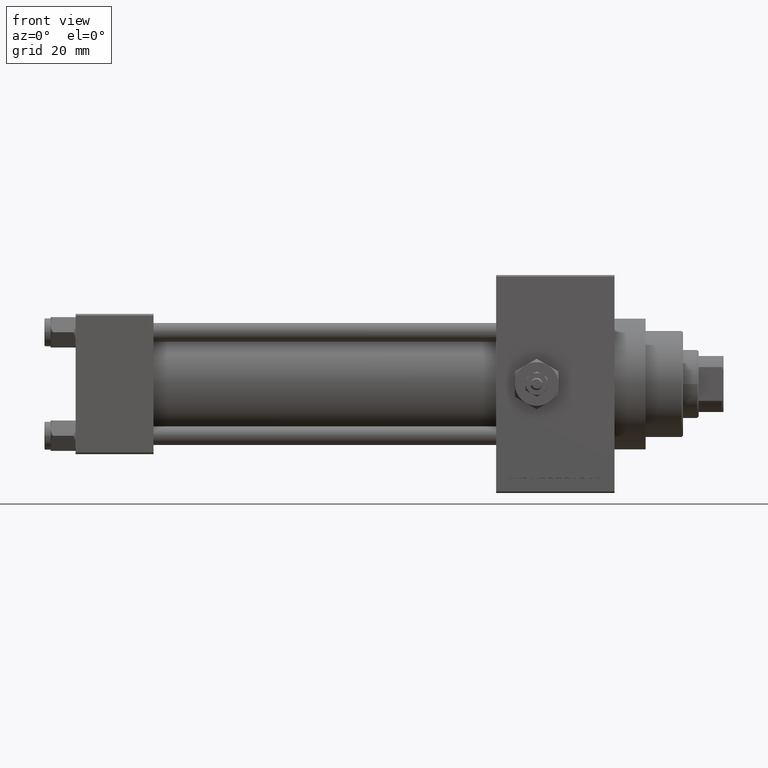
[diagram: clean part render]
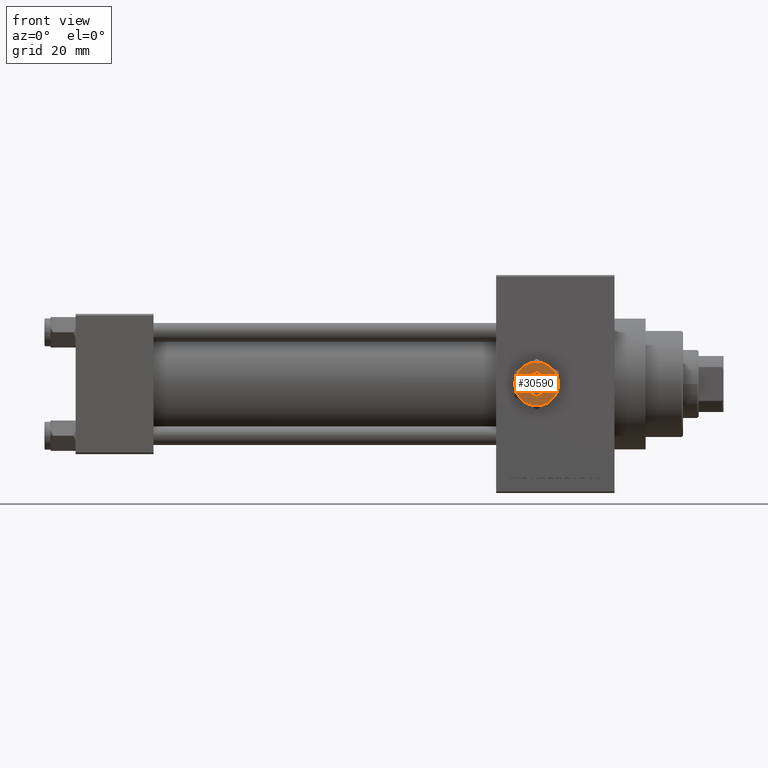
[diagram: same view with one face highlighted and labeled with its STEP entity id]
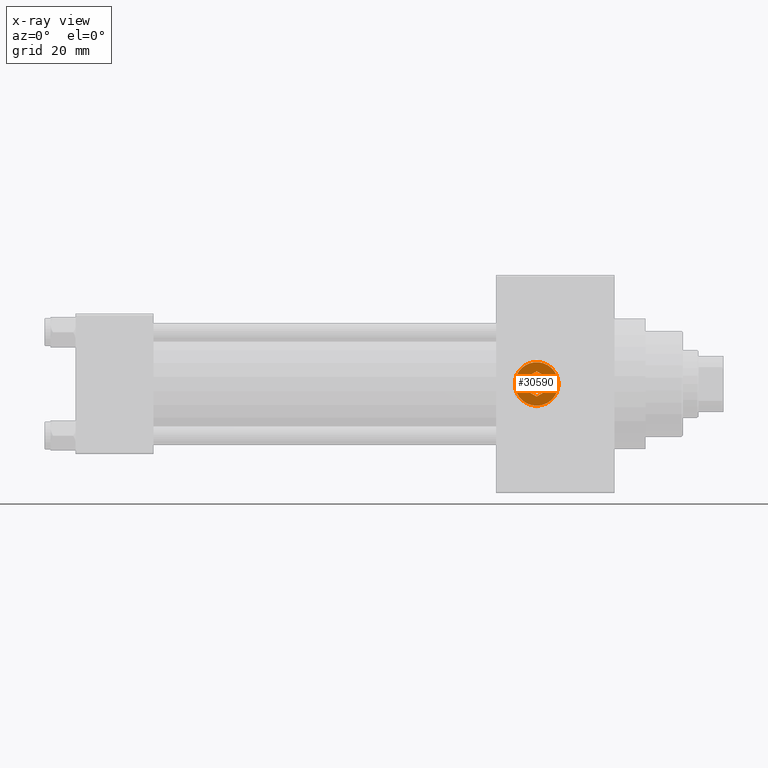
[diagram: x-ray of the same camera — body ghosted, the highlighted face saturated]
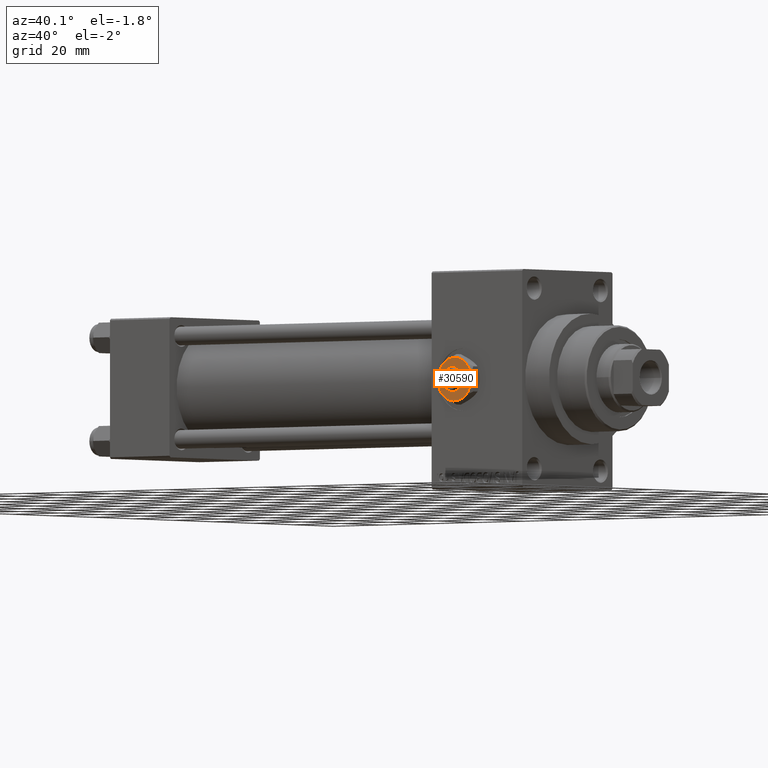
[diagram: same view with one face highlighted and labeled with its STEP entity id]
A machine part, front view. The second image highlights one B-rep face of the part: STEP entity #30590.
The next image is the same camera in x-ray: the body ghosted, the highlighted face saturated — about 0% of this face is hidden behind the body in this view.
A second angle (auxiliary view) of the same face is appended — the face is thin or edge-on in the first view.
In plain terms, the highlighted planar face has unit normal (0, -1, -0).
Its self-contained STEP definition (entity closure, byte-faithful):
#120 = CARTESIAN_POINT ( 'NONE',  ( 3.500000000000000000, -2.020725942163690281, 4.299999999999999822 ) ) ;
#245 = DIRECTION ( 'NONE',  ( -3.219245568722483357E-16, 1.000000000000000000, 0.000000000000000000 ) ) ;
#783 = DIRECTION ( 'NONE',  ( 1.000000000000000000, 0.000000000000000000, 0.000000000000000000 ) ) ;
#1847 = ORIENTED_EDGE ( 'NONE', *, *, #43045, .T. ) ;
#2067 = VERTEX_POINT ( 'NONE', #4788 ) ;
#2761 = ORIENTED_EDGE ( 'NONE', *, *, #18496, .T. ) ;
#2903 = AXIS2_PLACEMENT_3D ( 'NONE', #9194, #16620, #8950 ) ;
#3246 = ORIENTED_EDGE ( 'NONE', *, *, #7672, .T. ) ;
#4788 = CARTESIAN_POINT ( 'NONE',  ( -3.499999999999998668, -2.020725942163689837, 4.299999999999999822 ) ) ;
#6610 = VERTEX_POINT ( 'NONE', #39509 ) ;
#7207 = CARTESIAN_POINT ( 'NONE',  ( 0.000000000000000000, 0.000000000000000000, 4.299999999999999822 ) ) ;
#7672 = EDGE_CURVE ( 'NONE', #44621, #30722, #19479, .T. ) ;
#8276 = DIRECTION ( 'NONE',  ( 0.8660254037844388186, 0.4999999999999996669, 0.000000000000000000 ) ) ;
#8416 = CARTESIAN_POINT ( 'NONE',  ( -2.443687887572056883E-16, -4.041451884327378785, 4.299999999999999822 ) ) ;
#8565 = CARTESIAN_POINT ( 'NONE',  ( -3.499999999999998668, -2.020725942163689837, 4.299999999999999822 ) ) ;
#8755 = VECTOR ( 'NONE', #34975, 1000.000000000000227 ) ;
#8890 = DIRECTION ( 'NONE',  ( 0.000000000000000000, 0.000000000000000000, 1.000000000000000000 ) ) ;
#8950 = DIRECTION ( 'NONE',  ( 1.000000000000000000, 0.000000000000000000, 0.000000000000000000 ) ) ;
#9148 = VECTOR ( 'NONE', #245, 1000.000000000000000 ) ;
#9194 = CARTESIAN_POINT ( 'NONE',  ( 0.000000000000000000, 0.000000000000000000, 4.299999999999999822 ) ) ;
#9510 = EDGE_LOOP ( 'NONE', ( #22578, #2761, #44347, #25383, #3246, #1847 ) ) ;
#11078 = LINE ( 'NONE', #36766, #44463 ) ;
#11136 = CARTESIAN_POINT ( 'NONE',  ( 3.499999999999999556, -2.020725942163690281, 4.299999999999999822 ) ) ;
#12068 = VERTEX_POINT ( 'NONE', #18598 ) ;
#12247 = DIRECTION ( 'NONE',  ( 0.000000000000000000, 0.000000000000000000, 1.000000000000000000 ) ) ;
#12350 = CARTESIAN_POINT ( 'NONE',  ( 0.000000000000000000, 0.000000000000000000, 4.299999999999999822 ) ) ;
#12438 = ORIENTED_EDGE ( 'NONE', *, *, #14282, .F. ) ;
#13391 = DIRECTION ( 'NONE',  ( -0.8660254037844387076, 0.4999999999999998335, 0.000000000000000000 ) ) ;
#13421 = PLANE ( 'NONE',  #32945 ) ;
#14126 = CARTESIAN_POINT ( 'NONE',  ( 3.499999999999998224, 2.020725942163691613, 4.299999999999999822 ) ) ;
#14282 = EDGE_CURVE ( 'NONE', #20926, #26570, #34448, .T. ) ;
#14303 = DIRECTION ( 'NONE',  ( 1.073081856240828196E-16, -1.000000000000000000, 0.000000000000000000 ) ) ;
#14472 = CIRCLE ( 'NONE', #22375, 7.000000000000001776 ) ;
#14624 = VERTEX_POINT ( 'NONE', #23046 ) ;
#15102 = DIRECTION ( 'NONE',  ( 1.000000000000000000, 0.000000000000000000, 0.000000000000000000 ) ) ;
#15589 = VERTEX_POINT ( 'NONE', #45922 ) ;
#16620 = DIRECTION ( 'NONE',  ( 0.000000000000000000, 0.000000000000000000, 1.000000000000000000 ) ) ;
#16693 = AXIS2_PLACEMENT_3D ( 'NONE', #12350, #8890, #46367 ) ;
#17238 = CARTESIAN_POINT ( 'NONE',  ( -7.000000000000001776, -2.253471898105739040E-15, 4.299999999999999822 ) ) ;
#17437 = CIRCLE ( 'NONE', #27699, 7.000000000000001776 ) ;
#18496 = EDGE_CURVE ( 'NONE', #15589, #40775, #17437, .T. ) ;
#18598 = CARTESIAN_POINT ( 'NONE',  ( 3.500000000000000888, -6.062177826491073951, 4.299999999999999822 ) ) ;
#19479 = CIRCLE ( 'NONE', #2903, 7.000000000000001776 ) ;
#19498 = CARTESIAN_POINT ( 'NONE',  ( 3.500000000000000444, 6.062177826491073063, 4.299999999999999822 ) ) ;
#19958 = LINE ( 'NONE', #38204, #24162 ) ;
#20731 = EDGE_CURVE ( 'NONE', #47158, #6610, #21542, .T. ) ;
#20854 = EDGE_CURVE ( 'NONE', #12068, #15589, #14472, .T. ) ;
#20926 = VERTEX_POINT ( 'NONE', #8416 ) ;
#21276 = CARTESIAN_POINT ( 'NONE',  ( -3.499999999999999112, 2.020725942163690725, 4.299999999999999822 ) ) ;
#21542 = LINE ( 'NONE', #14126, #23262 ) ;
#22375 = AXIS2_PLACEMENT_3D ( 'NONE', #7207, #37556, #15102 ) ;
#22416 = ORIENTED_EDGE ( 'NONE', *, *, #23037, .F. ) ;
#22578 = ORIENTED_EDGE ( 'NONE', *, *, #20854, .T. ) ;
#23037 = EDGE_CURVE ( 'NONE', #36217, #2067, #11078, .T. ) ;
#23046 = CARTESIAN_POINT ( 'NONE',  ( -3.500000000000000888, 6.062177826491073063, 4.299999999999999822 ) ) ;
#23262 = VECTOR ( 'NONE', #13391, 1000.000000000000114 ) ;
#24162 = VECTOR ( 'NONE', #42630, 1000.000000000000227 ) ;
#24536 = FACE_BOUND ( 'NONE', #46089, .T. ) ;
#24574 = CIRCLE ( 'NONE', #16693, 7.000000000000001776 ) ;
#25013 = AXIS2_PLACEMENT_3D ( 'NONE', #35678, #12247, #27313 ) ;
#25153 = AXIS2_PLACEMENT_3D ( 'NONE', #46679, #27968, #35377 ) ;
#25383 = ORIENTED_EDGE ( 'NONE', *, *, #32928, .T. ) ;
#26570 = VERTEX_POINT ( 'NONE', #120 ) ;
#26736 = EDGE_CURVE ( 'NONE', #26570, #47158, #41235, .T. ) ;
#27204 = EDGE_CURVE ( 'NONE', #6610, #36217, #19958, .T. ) ;
#27220 = DIRECTION ( 'NONE',  ( 0.000000000000000000, 0.000000000000000000, 1.000000000000000000 ) ) ;
#27313 = DIRECTION ( 'NONE',  ( 1.000000000000000000, 0.000000000000000000, 0.000000000000000000 ) ) ;
#27699 = AXIS2_PLACEMENT_3D ( 'NONE', #35583, #27220, #783 ) ;
#27968 = DIRECTION ( 'NONE',  ( 0.000000000000000000, 0.000000000000000000, 1.000000000000000000 ) ) ;
#29215 = EDGE_CURVE ( 'NONE', #40775, #14624, #43888, .T. ) ;
#30573 = CIRCLE ( 'NONE', #25153, 7.000000000000001776 ) ;
#30590 = ADVANCED_FACE ( 'NONE', ( #47183, #24536 ), #13421, .T. ) ;
#30722 = VERTEX_POINT ( 'NONE', #31407 ) ;
#30754 = CARTESIAN_POINT ( 'NONE',  ( -2.443687887572056883E-16, -4.041451884327378785, 4.299999999999999822 ) ) ;
#31407 = CARTESIAN_POINT ( 'NONE',  ( -3.500000000000000000, -6.062177826491073063, 4.299999999999999822 ) ) ;
#31455 = ORIENTED_EDGE ( 'NONE', *, *, #20731, .F. ) ;
#32922 = DIRECTION ( 'NONE',  ( 1.000000000000000000, 0.000000000000000000, -0.000000000000000000 ) ) ;
#32928 = EDGE_CURVE ( 'NONE', #14624, #44621, #30573, .T. ) ;
#32945 = AXIS2_PLACEMENT_3D ( 'NONE', #47921, #43740, #32922 ) ;
#34448 = LINE ( 'NONE', #30754, #47189 ) ;
#34975 = DIRECTION ( 'NONE',  ( 0.8660254037844385966, -0.4999999999999998890, 0.000000000000000000 ) ) ;
#35377 = DIRECTION ( 'NONE',  ( 1.000000000000000000, 0.000000000000000000, 0.000000000000000000 ) ) ;
#35583 = CARTESIAN_POINT ( 'NONE',  ( 0.000000000000000000, 0.000000000000000000, 4.299999999999999822 ) ) ;
#35678 = CARTESIAN_POINT ( 'NONE',  ( 0.000000000000000000, 0.000000000000000000, 4.299999999999999822 ) ) ;
#36217 = VERTEX_POINT ( 'NONE', #21276 ) ;
#36766 = CARTESIAN_POINT ( 'NONE',  ( -3.499999999999999112, 2.020725942163690725, 4.299999999999999822 ) ) ;
#37556 = DIRECTION ( 'NONE',  ( 0.000000000000000000, 0.000000000000000000, 1.000000000000000000 ) ) ;
#38180 = LINE ( 'NONE', #8565, #8755 ) ;
#38204 = CARTESIAN_POINT ( 'NONE',  ( 0.000000000000000000, 4.041451884327380562, 4.299999999999999822 ) ) ;
#39509 = CARTESIAN_POINT ( 'NONE',  ( 0.000000000000000000, 4.041451884327380562, 4.299999999999999822 ) ) ;
#40775 = VERTEX_POINT ( 'NONE', #19498 ) ;
#41218 = EDGE_CURVE ( 'NONE', #2067, #20926, #38180, .T. ) ;
#41235 = LINE ( 'NONE', #11136, #9148 ) ;
#41325 = ORIENTED_EDGE ( 'NONE', *, *, #26736, .F. ) ;
#41788 = ORIENTED_EDGE ( 'NONE', *, *, #41218, .F. ) ;
#42630 = DIRECTION ( 'NONE',  ( -0.8660254037844385966, -0.4999999999999998890, 0.000000000000000000 ) ) ;
#43045 = EDGE_CURVE ( 'NONE', #30722, #12068, #24574, .T. ) ;
#43397 = CARTESIAN_POINT ( 'NONE',  ( 3.499999999999998224, 2.020725942163691613, 4.299999999999999822 ) ) ;
#43740 = DIRECTION ( 'NONE',  ( 0.000000000000000000, 0.000000000000000000, 1.000000000000000000 ) ) ;
#43888 = CIRCLE ( 'NONE', #25013, 7.000000000000001776 ) ;
#44347 = ORIENTED_EDGE ( 'NONE', *, *, #29215, .T. ) ;
#44463 = VECTOR ( 'NONE', #14303, 1000.000000000000000 ) ;
#44621 = VERTEX_POINT ( 'NONE', #17238 ) ;
#45922 = CARTESIAN_POINT ( 'NONE',  ( 6.999999999999994671, 3.004629197474313724E-15, 4.299999999999999822 ) ) ;
#46089 = EDGE_LOOP ( 'NONE', ( #46526, #31455, #41325, #12438, #41788, #22416 ) ) ;
#46367 = DIRECTION ( 'NONE',  ( 1.000000000000000000, 0.000000000000000000, 0.000000000000000000 ) ) ;
#46526 = ORIENTED_EDGE ( 'NONE', *, *, #27204, .F. ) ;
#46679 = CARTESIAN_POINT ( 'NONE',  ( 0.000000000000000000, 0.000000000000000000, 4.299999999999999822 ) ) ;
#47158 = VERTEX_POINT ( 'NONE', #43397 ) ;
#47183 = FACE_OUTER_BOUND ( 'NONE', #9510, .T. ) ;
#47189 = VECTOR ( 'NONE', #8276, 1000.000000000000114 ) ;
#47921 = CARTESIAN_POINT ( 'NONE',  ( 0.000000000000000000, 0.000000000000000000, 4.299999999999999822 ) ) ;